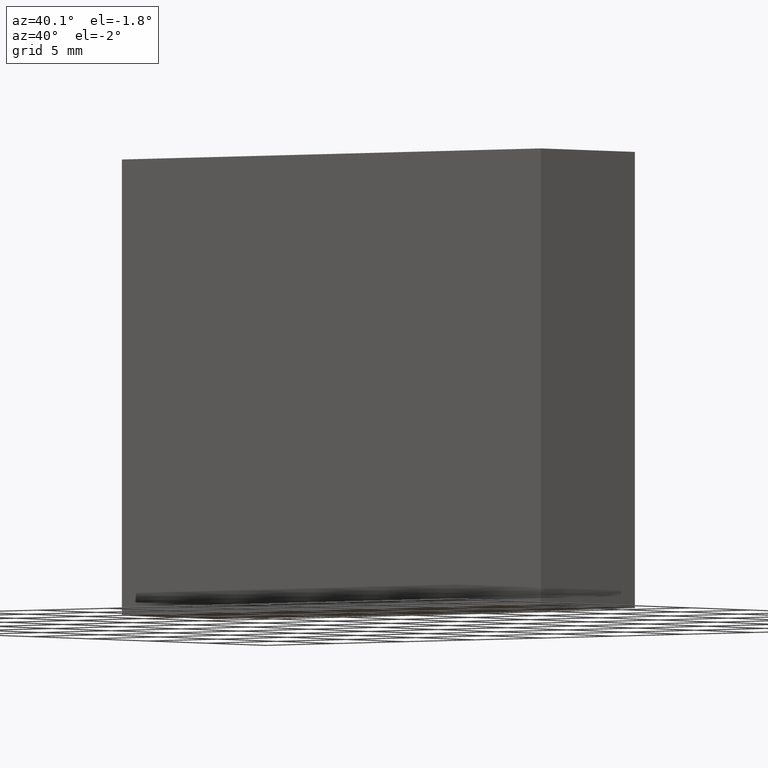
[diagram: clean part render]
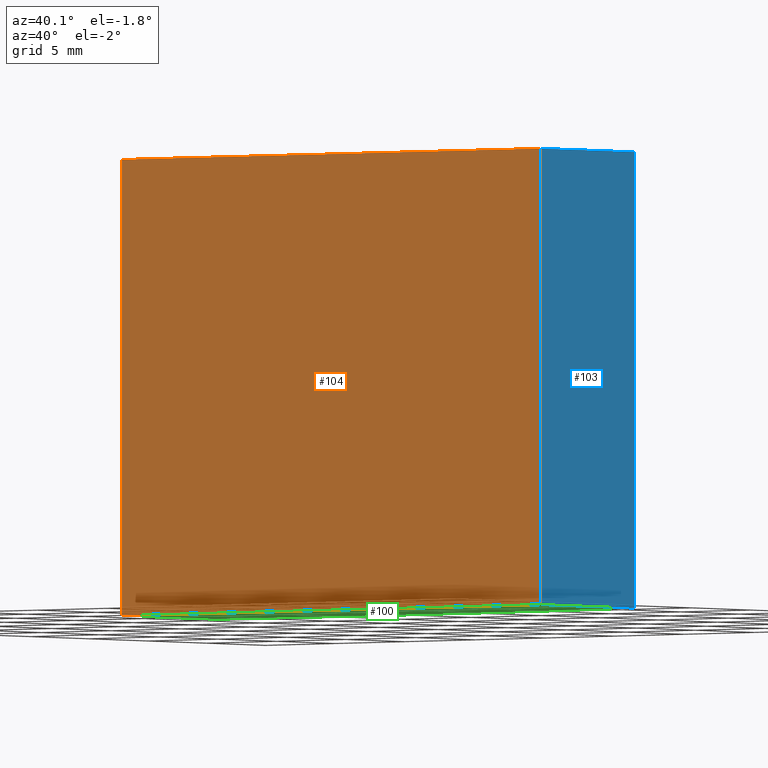
[diagram: same view with three faces highlighted in distinct colors, each labeled with its STEP entity id]
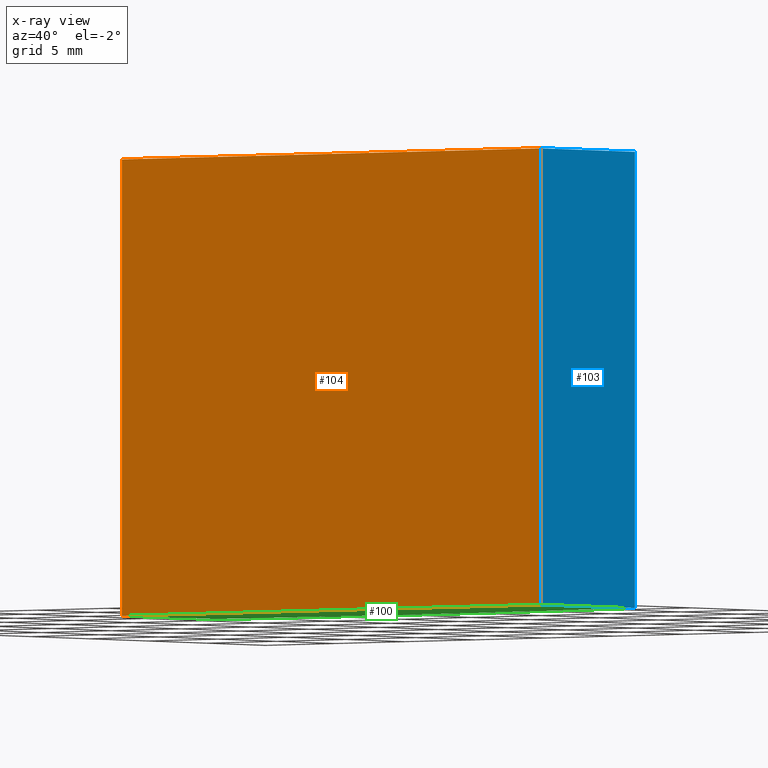
[diagram: x-ray of the same camera — body ghosted, the three highlighted faces saturated]
A machine part, auxiliary view with three faces highlighted in distinct colors.
The next image is the same camera in x-ray (body ghosted, the three faces saturated) — at least one of them is partly hidden behind the body in this view.
Their STEP definitions:

[orange] entity #104 — the highlighted planar face has unit normal (0, -1, 0).
#21=FACE_OUTER_BOUND('',#27,.T.);
#27=EDGE_LOOP('',(#87,#88,#89,#90));
#32=LINE('',#171,#42);
#36=LINE('',#180,#46);
#39=LINE('',#188,#49);
#40=LINE('',#190,#50);
#42=VECTOR('',#142,10.);
#46=VECTOR('',#150,10.);
#49=VECTOR('',#159,10.);
#50=VECTOR('',#162,10.);
#51=VERTEX_POINT('',#167);
#53=VERTEX_POINT('',#170);
#55=VERTEX_POINT('',#176);
#58=VERTEX_POINT('',#186);
#60=EDGE_CURVE('',#53,#51,#32,.T.);
#65=EDGE_CURVE('',#55,#53,#36,.T.);
#69=EDGE_CURVE('',#51,#58,#39,.T.);
#70=EDGE_CURVE('',#58,#55,#40,.T.);
#87=ORIENTED_EDGE('',*,*,#70,.T.);
#88=ORIENTED_EDGE('',*,*,#65,.T.);
#89=ORIENTED_EDGE('',*,*,#60,.T.);
#90=ORIENTED_EDGE('',*,*,#69,.T.);
#98=PLANE('',#135);
#104=ADVANCED_FACE('',(#21),#98,.T.);
#135=AXIS2_PLACEMENT_3D('',#189,#160,#161);
#142=DIRECTION('',(1.,0.,0.));
#150=DIRECTION('',(0.,0.,-1.));
#159=DIRECTION('',(0.,0.,1.));
#160=DIRECTION('center_axis',(0.,-1.,0.));
#161=DIRECTION('ref_axis',(0.,0.,-1.));
#162=DIRECTION('',(-1.,0.,0.));
#167=CARTESIAN_POINT('',(15.,0.,-12.5));
#170=CARTESIAN_POINT('',(-15.,0.,-12.5));
#171=CARTESIAN_POINT('',(15.,0.,-12.5));
#176=CARTESIAN_POINT('',(-15.,0.,12.5));
#180=CARTESIAN_POINT('',(-15.,0.,0.));
#186=CARTESIAN_POINT('',(15.,0.,12.5));
#188=CARTESIAN_POINT('',(15.,0.,0.));
#189=CARTESIAN_POINT('Origin',(15.,0.,0.));
#190=CARTESIAN_POINT('',(15.,0.,12.5));

[blue] entity #103 — the highlighted planar face has unit normal (1, 0, 0).
#20=FACE_OUTER_BOUND('',#26,.T.);
#26=EDGE_LOOP('',(#83,#84,#85,#86));
#31=LINE('',#169,#41);
#37=LINE('',#184,#47);
#38=LINE('',#187,#48);
#39=LINE('',#188,#49);
#41=VECTOR('',#141,10.);
#47=VECTOR('',#155,10.);
#48=VECTOR('',#158,10.);
#49=VECTOR('',#159,10.);
#51=VERTEX_POINT('',#167);
#52=VERTEX_POINT('',#168);
#57=VERTEX_POINT('',#182);
#58=VERTEX_POINT('',#186);
#59=EDGE_CURVE('',#51,#52,#31,.T.);
#67=EDGE_CURVE('',#57,#52,#37,.T.);
#68=EDGE_CURVE('',#57,#58,#38,.T.);
#69=EDGE_CURVE('',#51,#58,#39,.T.);
#83=ORIENTED_EDGE('',*,*,#68,.T.);
#84=ORIENTED_EDGE('',*,*,#69,.F.);
#85=ORIENTED_EDGE('',*,*,#59,.T.);
#86=ORIENTED_EDGE('',*,*,#67,.F.);
#97=PLANE('',#134);
#103=ADVANCED_FACE('',(#20),#97,.T.);
#134=AXIS2_PLACEMENT_3D('',#185,#156,#157);
#141=DIRECTION('',(-2.77555756156289E-16,1.,0.));
#155=DIRECTION('',(0.,0.,-1.));
#156=DIRECTION('center_axis',(1.,2.77555756156289E-16,0.));
#157=DIRECTION('ref_axis',(0.,0.,-1.));
#158=DIRECTION('',(2.77555756156289E-16,-1.,0.));
#159=DIRECTION('',(0.,0.,1.));
#167=CARTESIAN_POINT('',(15.,0.,-12.5));
#168=CARTESIAN_POINT('',(15.,8.00000000000001,-12.5));
#169=CARTESIAN_POINT('',(15.,8.00000000000001,-12.5));
#182=CARTESIAN_POINT('',(15.,8.00000000000001,12.5));
#184=CARTESIAN_POINT('',(15.,8.00000000000001,0.));
#185=CARTESIAN_POINT('Origin',(15.,8.00000000000001,0.));
#186=CARTESIAN_POINT('',(15.,0.,12.5));
#187=CARTESIAN_POINT('',(15.,8.00000000000001,12.5));
#188=CARTESIAN_POINT('',(15.,0.,0.));

[green] entity #100 — the highlighted planar face has unit normal (0, 0, 1).
#17=FACE_OUTER_BOUND('',#23,.T.);
#23=EDGE_LOOP('',(#71,#72,#73,#74));
#29=CIRCLE('',#130,113.);
#31=LINE('',#169,#41);
#32=LINE('',#171,#42);
#33=LINE('',#173,#43);
#41=VECTOR('',#141,10.);
#42=VECTOR('',#142,10.);
#43=VECTOR('',#143,10.);
#51=VERTEX_POINT('',#167);
#52=VERTEX_POINT('',#168);
#53=VERTEX_POINT('',#170);
#54=VERTEX_POINT('',#172);
#59=EDGE_CURVE('',#51,#52,#31,.T.);
#60=EDGE_CURVE('',#53,#51,#32,.T.);
#61=EDGE_CURVE('',#54,#53,#33,.T.);
#62=EDGE_CURVE('',#52,#54,#29,.T.);
#71=ORIENTED_EDGE('',*,*,#59,.F.);
#72=ORIENTED_EDGE('',*,*,#60,.F.);
#73=ORIENTED_EDGE('',*,*,#61,.F.);
#74=ORIENTED_EDGE('',*,*,#62,.F.);
#95=PLANE('',#129);
#100=ADVANCED_FACE('',(#17),#95,.F.);
#129=AXIS2_PLACEMENT_3D('',#166,#139,#140);
#130=AXIS2_PLACEMENT_3D('',#174,#144,#145);
#139=DIRECTION('center_axis',(0.,0.,1.));
#140=DIRECTION('ref_axis',(1.,0.,0.));
#141=DIRECTION('',(-2.77555756156289E-16,1.,0.));
#142=DIRECTION('',(1.,0.,0.));
#143=DIRECTION('',(-2.77555756156289E-16,-1.,0.));
#144=DIRECTION('center_axis',(0.,0.,1.));
#145=DIRECTION('ref_axis',(-0.132743362831858,-0.991150442477876,0.));
#166=CARTESIAN_POINT('Origin',(-1.11022302462516E-15,4.24186740196555,-12.5));
#167=CARTESIAN_POINT('',(15.,0.,-12.5));
#168=CARTESIAN_POINT('',(15.,8.00000000000001,-12.5));
#169=CARTESIAN_POINT('',(15.,8.00000000000001,-12.5));
#170=CARTESIAN_POINT('',(-15.,0.,-12.5));
#171=CARTESIAN_POINT('',(15.,0.,-12.5));
#172=CARTESIAN_POINT('',(-15.,8.00000000000001,-12.5));
#173=CARTESIAN_POINT('',(-15.,0.,-12.5));
#174=CARTESIAN_POINT('Origin',(0.,-104.,-12.5));